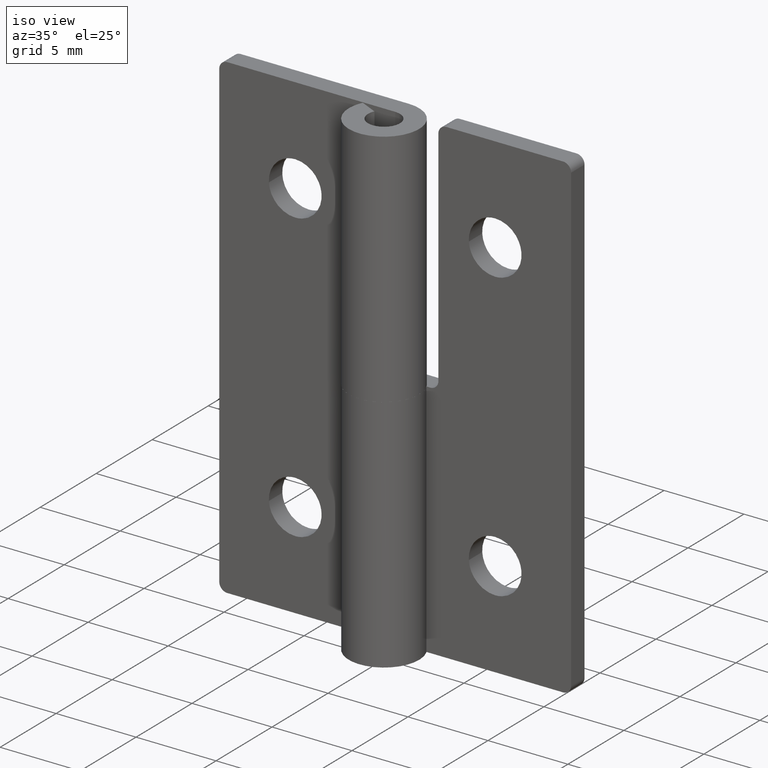
[diagram: clean part render]
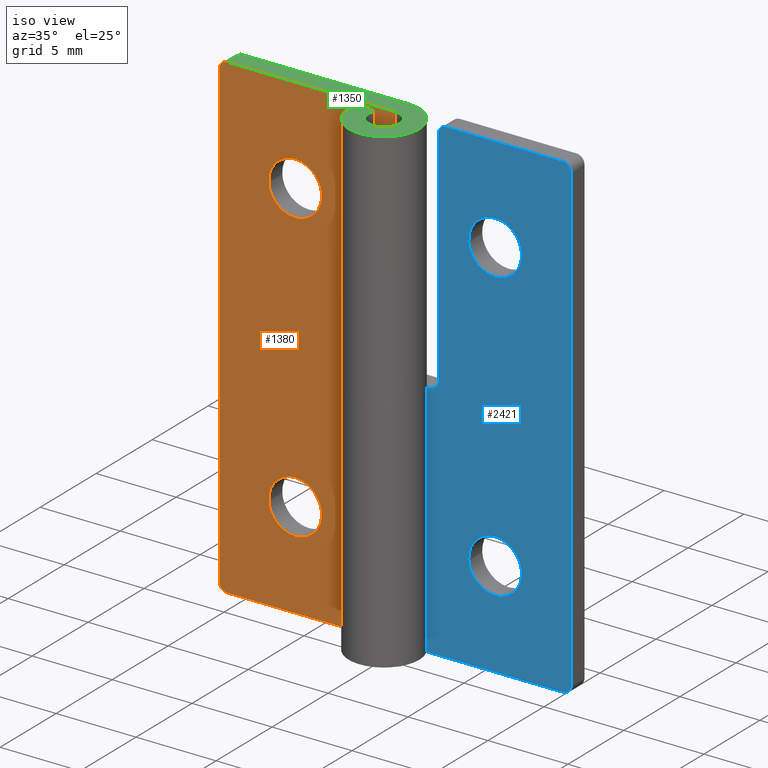
[diagram: same view with three faces highlighted in distinct colors, each labeled with its STEP entity id]
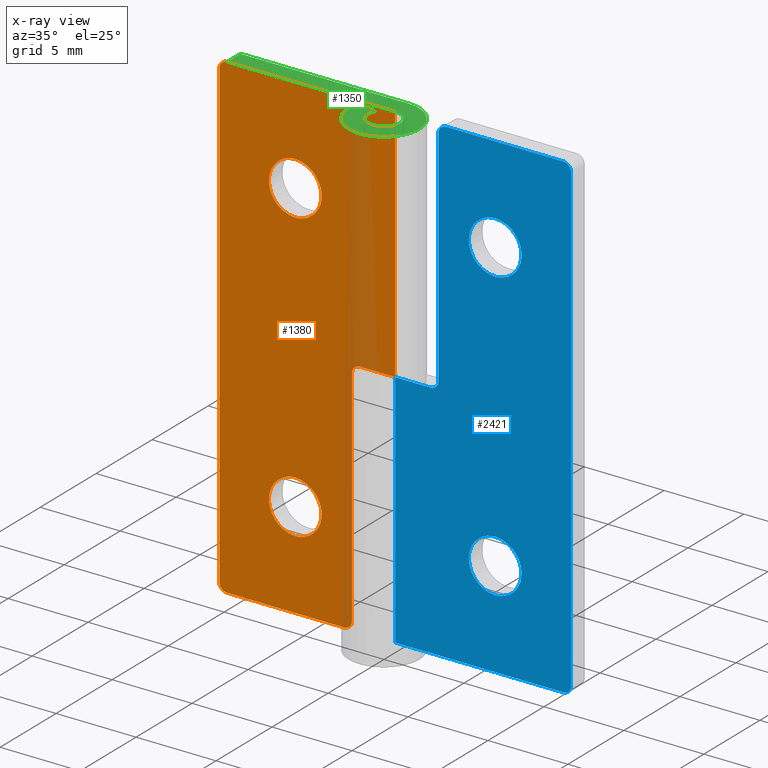
[diagram: x-ray of the same camera — body ghosted, the three highlighted faces saturated]
A machine part, iso view with three faces highlighted in distinct colors.
The next image is the same camera in x-ray (body ghosted, the three faces saturated) — at least one of them is partly hidden behind the body in this view.
Their STEP definitions:

[orange] entity #1380 — the highlighted face is a freeform B-spline surface patch.
#459=CARTESIAN_POINT('',(-4.611533955230199,1.000000000000129,24.194753742271519));
#460=VERTEX_POINT('',#459);
#461=CARTESIAN_POINT('',(-6.250000000000000,1.0,22.350000000000001));
#462=VERTEX_POINT('',#461);
#463=CARTESIAN_POINT('',(-4.611533955230199,1.000000000000129,24.194753742271516));
#464=CARTESIAN_POINT('',(-4.600000000000000,1.0,24.097718410460498));
#465=CARTESIAN_POINT('',(-4.600000000000000,1.0,24.0));
#466=CARTESIAN_POINT('',(-4.599999999999999,1.0,22.350000000000001));
#467=CARTESIAN_POINT('',(-6.250000000000000,1.0,22.350000000000001));
#475=(BOUNDED_CURVE()B_SPLINE_CURVE(2,(#463,#464,#465,#466,#467),.UNSPECIFIED.,.F.,.U.)B_SPLINE_CURVE_WITH_KNOTS((3,2,3),(0.229562756645836,0.250000000000000,0.500000000000000),.UNSPECIFIED.)CURVE()GEOMETRIC_REPRESENTATION_ITEM()RATIONAL_B_SPLINE_CURVE((0.956027309135400,0.976056280041301,1.0,0.707106781186548,1.0))REPRESENTATION_ITEM(''));
#476=EDGE_CURVE('',#460,#462,#475,.T.);
#517=CARTESIAN_POINT('',(-7.896922417392382,1.0,23.899269909707009));
#518=VERTEX_POINT('',#517);
#524=CARTESIAN_POINT('',(-6.250000000000000,1.0,22.350000000000001));
#525=CARTESIAN_POINT('',(-7.802165010280180,1.0,22.350000000000001));
#526=CARTESIAN_POINT('',(-7.896922417392382,1.0,23.899269909707009));
#534=(BOUNDED_CURVE()B_SPLINE_CURVE(2,(#524,#525,#526),.UNSPECIFIED.,.F.,.U.)B_SPLINE_CURVE_WITH_KNOTS((3,3),(0.500000000000000,0.739332962229295),.UNSPECIFIED.)CURVE()GEOMETRIC_REPRESENTATION_ITEM()RATIONAL_B_SPLINE_CURVE((1.0,0.719603993298013,0.976072041646040))REPRESENTATION_ITEM(''));
#535=EDGE_CURVE('',#462,#518,#534,.T.);
#562=CARTESIAN_POINT('',(-6.250000000000000,1.0,25.649999999999999));
#563=VERTEX_POINT('',#562);
#564=CARTESIAN_POINT('',(-6.250000000000000,1.0,25.649999999999999));
#565=CARTESIAN_POINT('',(-4.784509559772097,1.0,25.650000000000009));
#566=CARTESIAN_POINT('',(-4.611533955230200,1.000000000000129,24.194753742271519));
#574=(BOUNDED_CURVE()B_SPLINE_CURVE(2,(#564,#565,#566),.UNSPECIFIED.,.F.,.U.)B_SPLINE_CURVE_WITH_KNOTS((3,3),(0.0,0.229562756645836),.UNSPECIFIED.)CURVE()GEOMETRIC_REPRESENTATION_ITEM()RATIONAL_B_SPLINE_CURVE((1.0,0.731050501145247,0.956027309135400))REPRESENTATION_ITEM(''));
#575=EDGE_CURVE('',#563,#460,#574,.T.);
#577=CARTESIAN_POINT('',(-7.896922417392382,1.0,23.899269909707009));
#578=CARTESIAN_POINT('',(-7.900000000000000,1.0,23.949587940496684));
#579=CARTESIAN_POINT('',(-7.900000000000000,1.0,24.0));
#580=CARTESIAN_POINT('',(-7.900000000000000,1.0,25.650000000000006));
#581=CARTESIAN_POINT('',(-6.250000000000000,1.0,25.649999999999999));
#589=(BOUNDED_CURVE()B_SPLINE_CURVE(2,(#577,#578,#579,#580,#581),.UNSPECIFIED.,.F.,.U.)B_SPLINE_CURVE_WITH_KNOTS((3,2,3),(0.739332962229296,0.750000000000000,1.0),.UNSPECIFIED.)CURVE()GEOMETRIC_REPRESENTATION_ITEM()RATIONAL_B_SPLINE_CURVE((0.976072041646043,0.987502787888535,1.0,0.707106781186548,1.0))REPRESENTATION_ITEM(''));
#590=EDGE_CURVE('',#518,#563,#589,.T.);
#649=CARTESIAN_POINT('',(-4.611533955230200,1.000000000000129,6.194753742271528));
#650=VERTEX_POINT('',#649);
#651=CARTESIAN_POINT('',(-6.250000000000000,1.0,4.350000000000000));
#652=VERTEX_POINT('',#651);
#653=CARTESIAN_POINT('',(-4.611533955230200,1.000000000000129,6.194753742271528));
#654=CARTESIAN_POINT('',(-4.600000000000000,1.0,6.097718410460505));
#655=CARTESIAN_POINT('',(-4.600000000000000,1.0,6.0));
#656=CARTESIAN_POINT('',(-4.599999999999999,1.0,4.350000000000000));
#657=CARTESIAN_POINT('',(-6.250000000000000,1.0,4.350000000000000));
#665=(BOUNDED_CURVE()B_SPLINE_CURVE(2,(#653,#654,#655,#656,#657),.UNSPECIFIED.,.F.,.U.)B_SPLINE_CURVE_WITH_KNOTS((3,2,3),(0.229562756645836,0.250000000000000,0.500000000000000),.UNSPECIFIED.)CURVE()GEOMETRIC_REPRESENTATION_ITEM()RATIONAL_B_SPLINE_CURVE((0.956027309135399,0.976056280041300,1.0,0.707106781186548,1.0))REPRESENTATION_ITEM(''));
#666=EDGE_CURVE('',#650,#652,#665,.T.);
#707=CARTESIAN_POINT('',(-7.896922417392382,1.0,5.899269909707009));
#708=VERTEX_POINT('',#707);
#714=CARTESIAN_POINT('',(-6.250000000000000,1.0,4.350000000000000));
#715=CARTESIAN_POINT('',(-7.802165010280180,1.0,4.350000000000001));
#716=CARTESIAN_POINT('',(-7.896922417392382,1.0,5.899269909707009));
#724=(BOUNDED_CURVE()B_SPLINE_CURVE(2,(#714,#715,#716),.UNSPECIFIED.,.F.,.U.)B_SPLINE_CURVE_WITH_KNOTS((3,3),(0.500000000000000,0.739332962229295),.UNSPECIFIED.)CURVE()GEOMETRIC_REPRESENTATION_ITEM()RATIONAL_B_SPLINE_CURVE((1.0,0.719603993298013,0.976072041646040))REPRESENTATION_ITEM(''));
#725=EDGE_CURVE('',#652,#708,#724,.T.);
#752=CARTESIAN_POINT('',(-6.250000000000000,1.0,7.650000000000000));
#753=VERTEX_POINT('',#752);
#754=CARTESIAN_POINT('',(-6.250000000000000,1.0,7.650000000000000));
#755=CARTESIAN_POINT('',(-4.784509559772102,1.0,7.650000000000000));
#756=CARTESIAN_POINT('',(-4.611533955230200,1.000000000000129,6.194753742271528));
#764=(BOUNDED_CURVE()B_SPLINE_CURVE(2,(#754,#755,#756),.UNSPECIFIED.,.F.,.U.)B_SPLINE_CURVE_WITH_KNOTS((3,3),(0.0,0.229562756645836),.UNSPECIFIED.)CURVE()GEOMETRIC_REPRESENTATION_ITEM()RATIONAL_B_SPLINE_CURVE((1.0,0.731050501145248,0.956027309135399))REPRESENTATION_ITEM(''));
#765=EDGE_CURVE('',#753,#650,#764,.T.);
#767=CARTESIAN_POINT('',(-7.896922417392382,1.0,5.899269909707009));
#768=CARTESIAN_POINT('',(-7.900000000000000,1.0,5.949587940496682));
#769=CARTESIAN_POINT('',(-7.900000000000000,1.0,6.0));
#770=CARTESIAN_POINT('',(-7.900000000000000,1.0,7.650000000000000));
#771=CARTESIAN_POINT('',(-6.250000000000000,1.0,7.650000000000000));
#779=(BOUNDED_CURVE()B_SPLINE_CURVE(2,(#767,#768,#769,#770,#771),.UNSPECIFIED.,.F.,.U.)B_SPLINE_CURVE_WITH_KNOTS((3,2,3),(0.739332962229296,0.750000000000000,1.0),.UNSPECIFIED.)CURVE()GEOMETRIC_REPRESENTATION_ITEM()RATIONAL_B_SPLINE_CURVE((0.976072041646042,0.987502787888535,1.0,0.707106781186548,1.0))REPRESENTATION_ITEM(''));
#780=EDGE_CURVE('',#708,#753,#779,.T.);
#831=CARTESIAN_POINT('',(-2.199997000000000,1.0,15.0));
#832=VERTEX_POINT('',#831);
#833=CARTESIAN_POINT('',(-2.699997000000000,1.0,14.499999956366761));
#834=VERTEX_POINT('',#833);
#835=CARTESIAN_POINT('',(-2.199997000000000,1.0,15.0));
#836=CARTESIAN_POINT('',(-2.407103793966428,1.0,14.999999999999998));
#837=CARTESIAN_POINT('',(-2.553550406019954,1.0,14.853553375166589));
#838=CARTESIAN_POINT('',(-2.699997018073479,1.0,14.707106750333189));
#839=CARTESIAN_POINT('',(-2.699996999999998,1.0,14.499999956366761));
#847=(BOUNDED_CURVE()B_SPLINE_CURVE(2,(#835,#836,#837,#838,#839),.UNSPECIFIED.,.F.,.U.)B_SPLINE_CURVE_WITH_KNOTS((3,2,3),(0.0,0.500000000000000,1.0),.UNSPECIFIED.)CURVE()GEOMETRIC_REPRESENTATION_ITEM()RATIONAL_B_SPLINE_CURVE((1.0,0.923879524162427,1.0,0.923879524162427,1.0))REPRESENTATION_ITEM(''));
#848=EDGE_CURVE('',#832,#834,#847,.T.);
#887=CARTESIAN_POINT('',(-2.699997000000000,1.0,0.500000000000014));
#888=VERTEX_POINT('',#887);
#889=CARTESIAN_POINT('',(-2.699997000000000,1.0,14.499999956366761));
#890=CARTESIAN_POINT('',(-2.699997000000000,1.0,0.500000000000014));
#891=QUASI_UNIFORM_CURVE('',1,(#889,#890),.UNSPECIFIED.,.F.,.U.);
#892=EDGE_CURVE('',#834,#888,#891,.T.);
#945=CARTESIAN_POINT('',(0.0,1.0,15.0));
#946=VERTEX_POINT('',#945);
#966=CARTESIAN_POINT('',(0.0,1.0,15.0));
#967=CARTESIAN_POINT('',(-2.199997000000000,1.0,15.0));
#968=QUASI_UNIFORM_CURVE('',1,(#966,#967),.UNSPECIFIED.,.F.,.U.);
#969=EDGE_CURVE('',#946,#832,#968,.T.);
#994=CARTESIAN_POINT('',(-10.500000000000000,1.0,30.0));
#995=VERTEX_POINT('',#994);
#996=CARTESIAN_POINT('',(-11.0,1.0,29.500000000000000));
#997=VERTEX_POINT('',#996);
#998=CARTESIAN_POINT('',(-10.500000000000000,1.0,30.0));
#999=CARTESIAN_POINT('',(-11.000000000000002,1.0,30.000000000000004));
#1000=CARTESIAN_POINT('',(-11.0,1.0,29.500000000000000));
#1008=(BOUNDED_CURVE()B_SPLINE_CURVE(2,(#998,#999,#1000),.UNSPECIFIED.,.F.,.U.)CURVE()GEOMETRIC_REPRESENTATION_ITEM()QUASI_UNIFORM_CURVE()RATIONAL_B_SPLINE_CURVE((1.0,0.707106781186548,1.0))REPRESENTATION_ITEM(''));
#1009=EDGE_CURVE('',#995,#997,#1008,.T.);
#1055=CARTESIAN_POINT('',(-11.0,1.0,0.500000000000014));
#1056=VERTEX_POINT('',#1055);
#1057=CARTESIAN_POINT('',(-10.500000000000000,1.0,1.421085E-014));
#1058=VERTEX_POINT('',#1057);
#1059=CARTESIAN_POINT('',(-11.0,1.0,0.500000000000014));
#1060=CARTESIAN_POINT('',(-11.000000000000002,1.0,1.398621E-014));
#1061=CARTESIAN_POINT('',(-10.500000000000000,1.0,1.398621E-014));
#1069=(BOUNDED_CURVE()B_SPLINE_CURVE(2,(#1059,#1060,#1061),.UNSPECIFIED.,.F.,.U.)CURVE()GEOMETRIC_REPRESENTATION_ITEM()QUASI_UNIFORM_CURVE()RATIONAL_B_SPLINE_CURVE((1.0,0.707106781186548,1.0))REPRESENTATION_ITEM(''));
#1070=EDGE_CURVE('',#1056,#1058,#1069,.T.);
#1116=CARTESIAN_POINT('',(-3.199997000000000,1.0,0.0));
#1117=VERTEX_POINT('',#1116);
#1118=CARTESIAN_POINT('',(-3.199997000000000,1.0,0.0));
#1119=CARTESIAN_POINT('',(-2.699997000000000,1.0,1.398621E-014));
#1120=CARTESIAN_POINT('',(-2.699997000000000,1.0,0.500000000000014));
#1128=(BOUNDED_CURVE()B_SPLINE_CURVE(2,(#1118,#1119,#1120),.UNSPECIFIED.,.F.,.U.)CURVE()GEOMETRIC_REPRESENTATION_ITEM()QUASI_UNIFORM_CURVE()RATIONAL_B_SPLINE_CURVE((1.0,0.707106781186548,1.0))REPRESENTATION_ITEM(''));
#1129=EDGE_CURVE('',#1117,#888,#1128,.T.);
#1185=CARTESIAN_POINT('',(0.0,1.0,30.0));
#1186=VERTEX_POINT('',#1185);
#1206=CARTESIAN_POINT('',(0.0,1.0,15.0));
#1207=CARTESIAN_POINT('',(0.0,1.0,30.0));
#1208=QUASI_UNIFORM_CURVE('',1,(#1206,#1207),.UNSPECIFIED.,.F.,.U.);
#1209=EDGE_CURVE('',#946,#1186,#1208,.T.);
#1294=CARTESIAN_POINT('',(-10.500000000000000,1.0,1.421085E-014));
#1295=CARTESIAN_POINT('',(-3.199997000000000,1.0,0.0));
#1296=QUASI_UNIFORM_CURVE('',1,(#1294,#1295),.UNSPECIFIED.,.F.,.U.);
#1297=EDGE_CURVE('',#1058,#1117,#1296,.T.);
#1321=CARTESIAN_POINT('',(-11.0,1.0,0.500000000000014));
#1322=CARTESIAN_POINT('',(-11.0,1.0,29.500000000000000));
#1323=QUASI_UNIFORM_CURVE('',1,(#1321,#1322),.UNSPECIFIED.,.F.,.U.);
#1324=EDGE_CURVE('',#1056,#997,#1323,.T.);
#1335=CARTESIAN_POINT('',(-10.500000000000000,1.0,30.0));
#1336=CARTESIAN_POINT('',(0.0,1.0,30.0));
#1337=QUASI_UNIFORM_CURVE('',1,(#1335,#1336),.UNSPECIFIED.,.F.,.U.);
#1338=EDGE_CURVE('',#995,#1186,#1337,.T.);
#1351=CARTESIAN_POINT('',(-11.549449978679871,1.0,31.498499941854181));
#1352=CARTESIAN_POINT('',(-11.549449978679860,1.0,-1.498500746516883));
#1353=CARTESIAN_POINT('',(0.549450273722857,1.0,31.498499941854181));
#1354=CARTESIAN_POINT('',(0.549450273722857,1.0,-1.498500746516883));
#1355=B_SPLINE_SURFACE_WITH_KNOTS('',1,1,((#1351,#1353),(#1352,#1354)),.UNSPECIFIED.,.F.,.F.,.U.,(2,2),(2,2),(0.0,32.997000688371060),(0.0,12.098900252402720),.UNSPECIFIED.);
#1356=ORIENTED_EDGE('',*,*,#969,.F.);
#1357=ORIENTED_EDGE('',*,*,#1209,.T.);
#1358=ORIENTED_EDGE('',*,*,#1338,.F.);
#1359=ORIENTED_EDGE('',*,*,#1009,.T.);
#1360=ORIENTED_EDGE('',*,*,#1324,.F.);
#1361=ORIENTED_EDGE('',*,*,#1070,.T.);
#1362=ORIENTED_EDGE('',*,*,#1297,.T.);
#1363=ORIENTED_EDGE('',*,*,#1129,.T.);
#1364=ORIENTED_EDGE('',*,*,#892,.F.);
#1365=ORIENTED_EDGE('',*,*,#848,.F.);
#1366=EDGE_LOOP('',(#1356,#1357,#1358,#1359,#1360,#1361,#1362,#1363,#1364,#1365));
#1367=FACE_OUTER_BOUND('',#1366,.T.);
#1368=ORIENTED_EDGE('',*,*,#725,.T.);
#1369=ORIENTED_EDGE('',*,*,#780,.T.);
#1370=ORIENTED_EDGE('',*,*,#765,.T.);
#1371=ORIENTED_EDGE('',*,*,#666,.T.);
#1372=EDGE_LOOP('',(#1368,#1369,#1370,#1371));
#1373=FACE_BOUND('',#1372,.T.);
#1374=ORIENTED_EDGE('',*,*,#535,.T.);
#1375=ORIENTED_EDGE('',*,*,#590,.T.);
#1376=ORIENTED_EDGE('',*,*,#575,.T.);
#1377=ORIENTED_EDGE('',*,*,#476,.T.);
#1378=EDGE_LOOP('',(#1374,#1375,#1376,#1377));
#1379=FACE_BOUND('',#1378,.T.);
#1380=ADVANCED_FACE('',(#1367,#1373,#1379),#1355,.T.);

[blue] entity #2421 — the highlighted face is a freeform B-spline surface patch.
#1508=CARTESIAN_POINT('',(4.603077582607618,1.0,23.899269909707009));
#1509=VERTEX_POINT('',#1508);
#1515=CARTESIAN_POINT('',(6.250000000000000,1.0,22.350000000000001));
#1516=VERTEX_POINT('',#1515);
#1517=CARTESIAN_POINT('',(6.250000000000000,1.0,22.350000000000001));
#1518=CARTESIAN_POINT('',(4.697834989719819,1.0,22.350000000000001));
#1519=CARTESIAN_POINT('',(4.603077582607618,1.0,23.899269909707009));
#1527=(BOUNDED_CURVE()B_SPLINE_CURVE(2,(#1517,#1518,#1519),.UNSPECIFIED.,.F.,.U.)B_SPLINE_CURVE_WITH_KNOTS((3,3),(0.500000000000000,0.739332962229295),.UNSPECIFIED.)CURVE()GEOMETRIC_REPRESENTATION_ITEM()RATIONAL_B_SPLINE_CURVE((1.0,0.719603993298013,0.976072041646040))REPRESENTATION_ITEM(''));
#1528=EDGE_CURVE('',#1516,#1509,#1527,.T.);
#1530=CARTESIAN_POINT('',(7.888466040848774,1.0,24.194753775259649));
#1531=VERTEX_POINT('',#1530);
#1532=CARTESIAN_POINT('',(7.888466040848774,1.0,24.194753775259652));
#1533=CARTESIAN_POINT('',(7.900000000000000,1.0,24.097718427128928));
#1534=CARTESIAN_POINT('',(7.900000000000000,1.0,24.0));
#1535=CARTESIAN_POINT('',(7.900000000000000,1.0,22.350000000000001));
#1536=CARTESIAN_POINT('',(6.250000000000000,1.0,22.350000000000001));
#1544=(BOUNDED_CURVE()B_SPLINE_CURVE(2,(#1532,#1533,#1534,#1535,#1536),.UNSPECIFIED.,.F.,.U.)B_SPLINE_CURVE_WITH_KNOTS((3,2,3),(0.229562753243201,0.250000000000000,0.500000000000000),.UNSPECIFIED.)CURVE()GEOMETRIC_REPRESENTATION_ITEM()RATIONAL_B_SPLINE_CURVE((0.956027302466078,0.976056276054865,1.0,0.707106781186548,1.0))REPRESENTATION_ITEM(''));
#1545=EDGE_CURVE('',#1531,#1516,#1544,.T.);
#1593=CARTESIAN_POINT('',(6.250000000000000,1.0,25.649999999999999));
#1594=VERTEX_POINT('',#1593);
#1595=CARTESIAN_POINT('',(6.250000000000000,1.0,25.649999999999999));
#1596=CARTESIAN_POINT('',(7.715490410514693,1.0,25.650000000000006));
#1597=CARTESIAN_POINT('',(7.888466040848774,1.0,24.194753775259652));
#1605=(BOUNDED_CURVE()B_SPLINE_CURVE(2,(#1595,#1596,#1597),.UNSPECIFIED.,.F.,.U.)B_SPLINE_CURVE_WITH_KNOTS((3,3),(0.0,0.229562753243201),.UNSPECIFIED.)CURVE()GEOMETRIC_REPRESENTATION_ITEM()RATIONAL_B_SPLINE_CURVE((1.0,0.731050505131682,0.956027302466078))REPRESENTATION_ITEM(''));
#1606=EDGE_CURVE('',#1594,#1531,#1605,.T.);
#1608=CARTESIAN_POINT('',(4.603077582607618,1.0,23.899269909707009));
#1609=CARTESIAN_POINT('',(4.600000000000000,1.0,23.949587940496684));
#1610=CARTESIAN_POINT('',(4.600000000000000,1.0,24.0));
#1611=CARTESIAN_POINT('',(4.599999999999999,1.0,25.650000000000006));
#1612=CARTESIAN_POINT('',(6.250000000000000,1.0,25.649999999999999));
#1620=(BOUNDED_CURVE()B_SPLINE_CURVE(2,(#1608,#1609,#1610,#1611,#1612),.UNSPECIFIED.,.F.,.U.)B_SPLINE_CURVE_WITH_KNOTS((3,2,3),(0.739332962229296,0.750000000000000,1.0),.UNSPECIFIED.)CURVE()GEOMETRIC_REPRESENTATION_ITEM()RATIONAL_B_SPLINE_CURVE((0.976072041646042,0.987502787888535,1.0,0.707106781186548,1.0))REPRESENTATION_ITEM(''));
#1621=EDGE_CURVE('',#1509,#1594,#1620,.T.);
#1698=CARTESIAN_POINT('',(4.603077582607618,1.0,5.899269909707008));
#1699=VERTEX_POINT('',#1698);
#1705=CARTESIAN_POINT('',(6.250000000000000,1.0,4.350000000000000));
#1706=VERTEX_POINT('',#1705);
#1707=CARTESIAN_POINT('',(6.250000000000000,1.0,4.350000000000000));
#1708=CARTESIAN_POINT('',(4.697834989719819,1.0,4.350000000000001));
#1709=CARTESIAN_POINT('',(4.603077582607618,1.0,5.899269909707008));
#1717=(BOUNDED_CURVE()B_SPLINE_CURVE(2,(#1707,#1708,#1709),.UNSPECIFIED.,.F.,.U.)B_SPLINE_CURVE_WITH_KNOTS((3,3),(0.500000000000000,0.739332962229295),.UNSPECIFIED.)CURVE()GEOMETRIC_REPRESENTATION_ITEM()RATIONAL_B_SPLINE_CURVE((1.0,0.719603993298013,0.976072041646040))REPRESENTATION_ITEM(''));
#1718=EDGE_CURVE('',#1706,#1699,#1717,.T.);
#1720=CARTESIAN_POINT('',(7.888466040848774,1.0,6.194753775259649));
#1721=VERTEX_POINT('',#1720);
#1722=CARTESIAN_POINT('',(7.888466040848774,1.0,6.194753775259649));
#1723=CARTESIAN_POINT('',(7.900000000000001,1.0,6.097718427128930));
#1724=CARTESIAN_POINT('',(7.900000000000000,1.0,6.0));
#1725=CARTESIAN_POINT('',(7.900000000000000,1.0,4.350000000000000));
#1726=CARTESIAN_POINT('',(6.250000000000000,1.0,4.350000000000000));
#1734=(BOUNDED_CURVE()B_SPLINE_CURVE(2,(#1722,#1723,#1724,#1725,#1726),.UNSPECIFIED.,.F.,.U.)B_SPLINE_CURVE_WITH_KNOTS((3,2,3),(0.229562753243201,0.250000000000000,0.500000000000000),.UNSPECIFIED.)CURVE()GEOMETRIC_REPRESENTATION_ITEM()RATIONAL_B_SPLINE_CURVE((0.956027302466078,0.976056276054865,1.0,0.707106781186548,1.0))REPRESENTATION_ITEM(''));
#1735=EDGE_CURVE('',#1721,#1706,#1734,.T.);
#1783=CARTESIAN_POINT('',(6.250000000000000,1.0,7.650000000000000));
#1784=VERTEX_POINT('',#1783);
#1785=CARTESIAN_POINT('',(6.250000000000000,1.0,7.650000000000000));
#1786=CARTESIAN_POINT('',(7.715490410514692,1.0,7.649999999999999));
#1787=CARTESIAN_POINT('',(7.888466040848774,1.0,6.194753775259649));
#1795=(BOUNDED_CURVE()B_SPLINE_CURVE(2,(#1785,#1786,#1787),.UNSPECIFIED.,.F.,.U.)B_SPLINE_CURVE_WITH_KNOTS((3,3),(0.0,0.229562753243201),.UNSPECIFIED.)CURVE()GEOMETRIC_REPRESENTATION_ITEM()RATIONAL_B_SPLINE_CURVE((1.0,0.731050505131682,0.956027302466078))REPRESENTATION_ITEM(''));
#1796=EDGE_CURVE('',#1784,#1721,#1795,.T.);
#1798=CARTESIAN_POINT('',(4.603077582607618,1.0,5.899269909707009));
#1799=CARTESIAN_POINT('',(4.600000000000000,1.0,5.949587940496680));
#1800=CARTESIAN_POINT('',(4.600000000000000,1.0,6.0));
#1801=CARTESIAN_POINT('',(4.599999999999999,1.0,7.650000000000000));
#1802=CARTESIAN_POINT('',(6.250000000000000,1.0,7.650000000000000));
#1810=(BOUNDED_CURVE()B_SPLINE_CURVE(2,(#1798,#1799,#1800,#1801,#1802),.UNSPECIFIED.,.F.,.U.)B_SPLINE_CURVE_WITH_KNOTS((3,2,3),(0.739332962229296,0.750000000000000,1.0),.UNSPECIFIED.)CURVE()GEOMETRIC_REPRESENTATION_ITEM()RATIONAL_B_SPLINE_CURVE((0.976072041646042,0.987502787888535,1.0,0.707106781186548,1.0))REPRESENTATION_ITEM(''));
#1811=EDGE_CURVE('',#1699,#1784,#1810,.T.);
#1846=CARTESIAN_POINT('',(2.200004000000000,1.0,15.0));
#1847=VERTEX_POINT('',#1846);
#1848=CARTESIAN_POINT('',(2.700004000000000,1.0,15.500000000000000));
#1849=VERTEX_POINT('',#1848);
#1850=CARTESIAN_POINT('',(2.200004000000000,1.0,15.0));
#1851=CARTESIAN_POINT('',(2.700004000000001,1.0,14.999999999999995));
#1852=CARTESIAN_POINT('',(2.700004000000000,1.0,15.500000000000000));
#1860=(BOUNDED_CURVE()B_SPLINE_CURVE(2,(#1850,#1851,#1852),.UNSPECIFIED.,.F.,.U.)CURVE()GEOMETRIC_REPRESENTATION_ITEM()QUASI_UNIFORM_CURVE()RATIONAL_B_SPLINE_CURVE((1.0,0.707106781186548,1.0))REPRESENTATION_ITEM(''));
#1861=EDGE_CURVE('',#1847,#1849,#1860,.T.);
#1898=CARTESIAN_POINT('',(2.700004000000000,1.0,29.500000000000000));
#1899=VERTEX_POINT('',#1898);
#1900=CARTESIAN_POINT('',(2.700004000000000,1.0,15.500000000000000));
#1901=CARTESIAN_POINT('',(2.700004000000000,1.0,29.500000000000000));
#1902=QUASI_UNIFORM_CURVE('',1,(#1900,#1901),.UNSPECIFIED.,.F.,.U.);
#1903=EDGE_CURVE('',#1849,#1899,#1902,.T.);
#1956=CARTESIAN_POINT('',(0.0,1.0,15.0));
#1957=VERTEX_POINT('',#1956);
#1977=CARTESIAN_POINT('',(0.0,1.0,15.0));
#1978=CARTESIAN_POINT('',(2.200004000000000,1.0,15.0));
#1979=QUASI_UNIFORM_CURVE('',1,(#1977,#1978),.UNSPECIFIED.,.F.,.U.);
#1980=EDGE_CURVE('',#1957,#1847,#1979,.T.);
#2005=CARTESIAN_POINT('',(11.0,1.0,29.500000000000000));
#2006=VERTEX_POINT('',#2005);
#2007=CARTESIAN_POINT('',(10.500000000000000,1.0,30.0));
#2008=VERTEX_POINT('',#2007);
#2009=CARTESIAN_POINT('',(11.0,1.0,29.500000000000000));
#2010=CARTESIAN_POINT('',(11.000000000000002,1.0,30.000000000000004));
#2011=CARTESIAN_POINT('',(10.500000000000000,1.0,30.0));
#2019=(BOUNDED_CURVE()B_SPLINE_CURVE(2,(#2009,#2010,#2011),.UNSPECIFIED.,.F.,.U.)CURVE()GEOMETRIC_REPRESENTATION_ITEM()QUASI_UNIFORM_CURVE()RATIONAL_B_SPLINE_CURVE((1.0,0.707106781186548,1.0))REPRESENTATION_ITEM(''));
#2020=EDGE_CURVE('',#2006,#2008,#2019,.T.);
#2066=CARTESIAN_POINT('',(10.500000000000000,1.0,0.0));
#2067=VERTEX_POINT('',#2066);
#2068=CARTESIAN_POINT('',(11.0,1.0,0.500000000000014));
#2069=VERTEX_POINT('',#2068);
#2070=CARTESIAN_POINT('',(10.500000000000000,1.0,1.398621E-014));
#2071=CARTESIAN_POINT('',(11.000000000000002,1.0,1.398621E-014));
#2072=CARTESIAN_POINT('',(11.0,1.0,0.500000000000014));
#2080=(BOUNDED_CURVE()B_SPLINE_CURVE(2,(#2070,#2071,#2072),.UNSPECIFIED.,.F.,.U.)CURVE()GEOMETRIC_REPRESENTATION_ITEM()QUASI_UNIFORM_CURVE()RATIONAL_B_SPLINE_CURVE((1.0,0.707106781186548,1.0))REPRESENTATION_ITEM(''));
#2081=EDGE_CURVE('',#2067,#2069,#2080,.T.);
#2127=CARTESIAN_POINT('',(3.200004000000000,1.0,30.0));
#2128=VERTEX_POINT('',#2127);
#2129=CARTESIAN_POINT('',(3.200004000000000,1.0,30.0));
#2130=CARTESIAN_POINT('',(2.700004000000001,1.0,30.000000000000004));
#2131=CARTESIAN_POINT('',(2.700004000000000,1.0,29.500000000000000));
#2139=(BOUNDED_CURVE()B_SPLINE_CURVE(2,(#2129,#2130,#2131),.UNSPECIFIED.,.F.,.U.)CURVE()GEOMETRIC_REPRESENTATION_ITEM()QUASI_UNIFORM_CURVE()RATIONAL_B_SPLINE_CURVE((1.0,0.707106781186548,1.0))REPRESENTATION_ITEM(''));
#2140=EDGE_CURVE('',#2128,#1899,#2139,.T.);
#2172=CARTESIAN_POINT('',(0.0,1.0,0.0));
#2173=VERTEX_POINT('',#2172);
#2174=CARTESIAN_POINT('',(0.0,1.0,0.0));
#2175=CARTESIAN_POINT('',(10.500000000000000,1.0,0.0));
#2176=QUASI_UNIFORM_CURVE('',1,(#2174,#2175),.UNSPECIFIED.,.F.,.U.);
#2177=EDGE_CURVE('',#2173,#2067,#2176,.T.);
#2314=CARTESIAN_POINT('',(0.0,1.0,0.0));
#2315=CARTESIAN_POINT('',(0.0,1.0,15.0));
#2316=QUASI_UNIFORM_CURVE('',1,(#2314,#2315),.UNSPECIFIED.,.F.,.U.);
#2317=EDGE_CURVE('',#2173,#1957,#2316,.T.);
#2327=CARTESIAN_POINT('',(3.200004000000000,1.0,30.0));
#2328=CARTESIAN_POINT('',(10.500000000000000,1.0,30.0));
#2329=QUASI_UNIFORM_CURVE('',1,(#2327,#2328),.UNSPECIFIED.,.F.,.U.);
#2330=EDGE_CURVE('',#2128,#2008,#2329,.T.);
#2353=CARTESIAN_POINT('',(11.0,1.0,0.500000000000014));
#2354=CARTESIAN_POINT('',(11.0,1.0,29.500000000000000));
#2355=QUASI_UNIFORM_CURVE('',1,(#2353,#2354),.UNSPECIFIED.,.F.,.U.);
#2356=EDGE_CURVE('',#2069,#2006,#2355,.T.);
#2392=CARTESIAN_POINT('',(-0.549449978679866,1.0,31.498499941854181));
#2393=CARTESIAN_POINT('',(-0.549449978679866,1.0,-1.498500746516883));
#2394=CARTESIAN_POINT('',(11.549450273722860,1.0,31.498499941854181));
#2395=CARTESIAN_POINT('',(11.549450273722860,1.0,-1.498500746516883));
#2396=B_SPLINE_SURFACE_WITH_KNOTS('',1,1,((#2392,#2394),(#2393,#2395)),.UNSPECIFIED.,.F.,.F.,.U.,(2,2),(2,2),(0.0,32.997000688371060),(0.0,12.098900252402730),.UNSPECIFIED.);
#2397=ORIENTED_EDGE('',*,*,#1980,.F.);
#2398=ORIENTED_EDGE('',*,*,#2317,.F.);
#2399=ORIENTED_EDGE('',*,*,#2177,.T.);
#2400=ORIENTED_EDGE('',*,*,#2081,.T.);
#2401=ORIENTED_EDGE('',*,*,#2356,.T.);
#2402=ORIENTED_EDGE('',*,*,#2020,.T.);
#2403=ORIENTED_EDGE('',*,*,#2330,.F.);
#2404=ORIENTED_EDGE('',*,*,#2140,.T.);
#2405=ORIENTED_EDGE('',*,*,#1903,.F.);
#2406=ORIENTED_EDGE('',*,*,#1861,.F.);
#2407=EDGE_LOOP('',(#2397,#2398,#2399,#2400,#2401,#2402,#2403,#2404,#2405,#2406));
#2408=FACE_OUTER_BOUND('',#2407,.T.);
#2409=ORIENTED_EDGE('',*,*,#1718,.T.);
#2410=ORIENTED_EDGE('',*,*,#1811,.T.);
#2411=ORIENTED_EDGE('',*,*,#1796,.T.);
#2412=ORIENTED_EDGE('',*,*,#1735,.T.);
#2413=EDGE_LOOP('',(#2409,#2410,#2411,#2412));
#2414=FACE_BOUND('',#2413,.T.);
#2415=ORIENTED_EDGE('',*,*,#1528,.T.);
#2416=ORIENTED_EDGE('',*,*,#1621,.T.);
#2417=ORIENTED_EDGE('',*,*,#1606,.T.);
#2418=ORIENTED_EDGE('',*,*,#1545,.T.);
#2419=EDGE_LOOP('',(#2415,#2416,#2417,#2418));
#2420=FACE_BOUND('',#2419,.T.);
#2421=ADVANCED_FACE('',(#2408,#2414,#2420),#2396,.T.);

[green] entity #1350 — the highlighted face is a freeform B-spline surface patch.
#994=CARTESIAN_POINT('',(-10.500000000000000,1.0,30.0));
#995=VERTEX_POINT('',#994);
#1011=CARTESIAN_POINT('',(-10.500000000000000,2.200000999999950,30.0));
#1012=VERTEX_POINT('',#1011);
#1013=CARTESIAN_POINT('',(-10.500000000000000,2.200000999999950,30.0));
#1014=CARTESIAN_POINT('',(-10.500000000000000,1.0,30.0));
#1015=QUASI_UNIFORM_CURVE('',1,(#1013,#1014),.UNSPECIFIED.,.F.,.U.);
#1016=EDGE_CURVE('',#1012,#995,#1015,.T.);
#1178=CARTESIAN_POINT('',(-0.901960674226565,0.431818181818182,30.0));
#1179=VERTEX_POINT('',#1178);
#1185=CARTESIAN_POINT('',(0.0,1.0,30.0));
#1186=VERTEX_POINT('',#1185);
#1187=CARTESIAN_POINT('',(0.0,1.0,30.0));
#1188=CARTESIAN_POINT('',(0.752128683310216,1.0,30.000000000000004));
#1189=CARTESIAN_POINT('',(0.960758583679232,0.277385911478351,30.0));
#1190=CARTESIAN_POINT('',(1.169388484048249,-0.445228177043299,30.000000000000004));
#1191=CARTESIAN_POINT('',(0.533001790889026,-0.846114112226649,30.0));
#1192=CARTESIAN_POINT('',(-0.103384902270197,-1.247000047410000,30.000000000000004));
#1193=CARTESIAN_POINT('',(-0.665064208508542,-0.746786179947719,30.0));
#1194=CARTESIAN_POINT('',(-1.226743514746886,-0.246572312485439,30.000000000000004));
#1195=CARTESIAN_POINT('',(-0.901960674226565,0.431818181818182,30.0));
#1203=(BOUNDED_CURVE()B_SPLINE_CURVE(2,(#1187,#1188,#1189,#1190,#1191,#1192,#1193,#1194,#1195),.UNSPECIFIED.,.F.,.U.)B_SPLINE_CURVE_WITH_KNOTS((3,2,2,2,3),(0.0,0.250000000000000,0.500000000000000,0.750000000000000,1.0),.UNSPECIFIED.)CURVE()GEOMETRIC_REPRESENTATION_ITEM()RATIONAL_B_SPLINE_CURVE((1.0,0.799182679829321,1.0,0.799182679829321,1.0,0.799182679829321,1.0,0.799182679829321,1.0))REPRESENTATION_ITEM(''));
#1204=EDGE_CURVE('',#1186,#1179,#1203,.T.);
#1236=CARTESIAN_POINT('',(-1.984313483298445,0.950000000000000,30.0));
#1237=VERTEX_POINT('',#1236);
#1244=CARTESIAN_POINT('',(-0.000000115191736,2.200000000000000,30.0));
#1245=VERTEX_POINT('',#1244);
#1251=CARTESIAN_POINT('',(-0.000000115191736,2.199999999999997,30.0));
#1252=CARTESIAN_POINT('',(1.654683010635165,2.200000086639007,30.0));
#1253=CARTESIAN_POINT('',(2.113668860129886,0.610249088255959,30.0));
#1254=CARTESIAN_POINT('',(2.572654709624608,-0.979501910127090,30.0));
#1255=CARTESIAN_POINT('',(1.172603988688535,-1.861451016199927,30.0));
#1256=CARTESIAN_POINT('',(-0.227446732247538,-2.743400122272762,30.0));
#1257=CARTESIAN_POINT('',(-1.463141237212890,-1.642929615037460,30.0));
#1258=CARTESIAN_POINT('',(-2.698835742178242,-0.542459107802157,30.0));
#1259=CARTESIAN_POINT('',(-1.984313483298444,0.949999999999998,30.0));
#1267=(BOUNDED_CURVE()B_SPLINE_CURVE(2,(#1251,#1252,#1253,#1254,#1255,#1256,#1257,#1258,#1259),.UNSPECIFIED.,.F.,.U.)B_SPLINE_CURVE_WITH_KNOTS((3,2,2,2,3),(0.0,0.250000000000000,0.500000000000000,0.750000000000000,1.0),.UNSPECIFIED.)CURVE()GEOMETRIC_REPRESENTATION_ITEM()RATIONAL_B_SPLINE_CURVE((1.0,0.799182675895208,1.0,0.799182675895208,1.0,0.799182675895208,1.0,0.799182675895208,1.0))REPRESENTATION_ITEM(''));
#1268=EDGE_CURVE('',#1245,#1237,#1267,.T.);
#1280=CARTESIAN_POINT('',(-0.901960674226565,0.431818181818182,30.0));
#1281=CARTESIAN_POINT('',(-1.984313483298445,0.950000000000000,30.0));
#1282=QUASI_UNIFORM_CURVE('',1,(#1280,#1281),.UNSPECIFIED.,.F.,.U.);
#1283=EDGE_CURVE('',#1179,#1237,#1282,.T.);
#1329=CARTESIAN_POINT('',(-11.134335575641620,-2.417309384225262,30.0));
#1330=CARTESIAN_POINT('',(2.833747332793693,-2.417309384225262,30.0));
#1331=CARTESIAN_POINT('',(-11.134335575641620,2.419663621090923,30.0));
#1332=CARTESIAN_POINT('',(2.833747332793693,2.419663621090923,30.0));
#1333=B_SPLINE_SURFACE_WITH_KNOTS('',1,1,((#1329,#1331),(#1330,#1332)),.UNSPECIFIED.,.F.,.F.,.U.,(2,2),(2,2),(0.0,13.968082908435310),(0.0,4.836973005316185),.UNSPECIFIED.);
#1334=ORIENTED_EDGE('',*,*,#1016,.T.);
#1335=CARTESIAN_POINT('',(-10.500000000000000,1.0,30.0));
#1336=CARTESIAN_POINT('',(0.0,1.0,30.0));
#1337=QUASI_UNIFORM_CURVE('',1,(#1335,#1336),.UNSPECIFIED.,.F.,.U.);
#1338=EDGE_CURVE('',#995,#1186,#1337,.T.);
#1339=ORIENTED_EDGE('',*,*,#1338,.T.);
#1340=ORIENTED_EDGE('',*,*,#1204,.T.);
#1341=ORIENTED_EDGE('',*,*,#1283,.T.);
#1342=ORIENTED_EDGE('',*,*,#1268,.F.);
#1343=CARTESIAN_POINT('',(-0.000000115191736,2.200000000000000,30.0));
#1344=CARTESIAN_POINT('',(-10.500000000000000,2.200000999999950,30.0));
#1345=QUASI_UNIFORM_CURVE('',1,(#1343,#1344),.UNSPECIFIED.,.F.,.U.);
#1346=EDGE_CURVE('',#1245,#1012,#1345,.T.);
#1347=ORIENTED_EDGE('',*,*,#1346,.T.);
#1348=EDGE_LOOP('',(#1334,#1339,#1340,#1341,#1342,#1347));
#1349=FACE_OUTER_BOUND('',#1348,.T.);
#1350=ADVANCED_FACE('',(#1349),#1333,.T.);